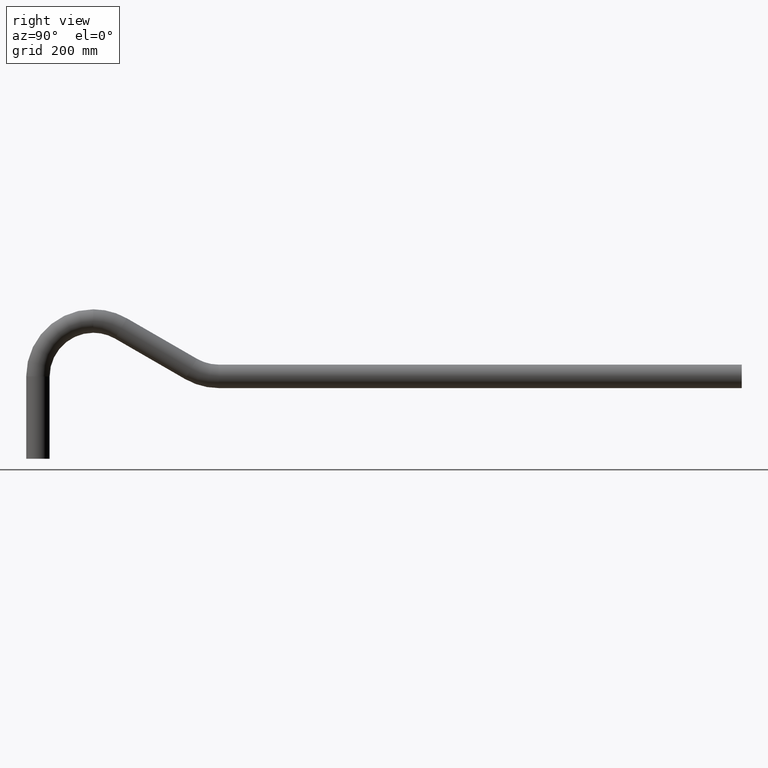
[diagram: clean part render]
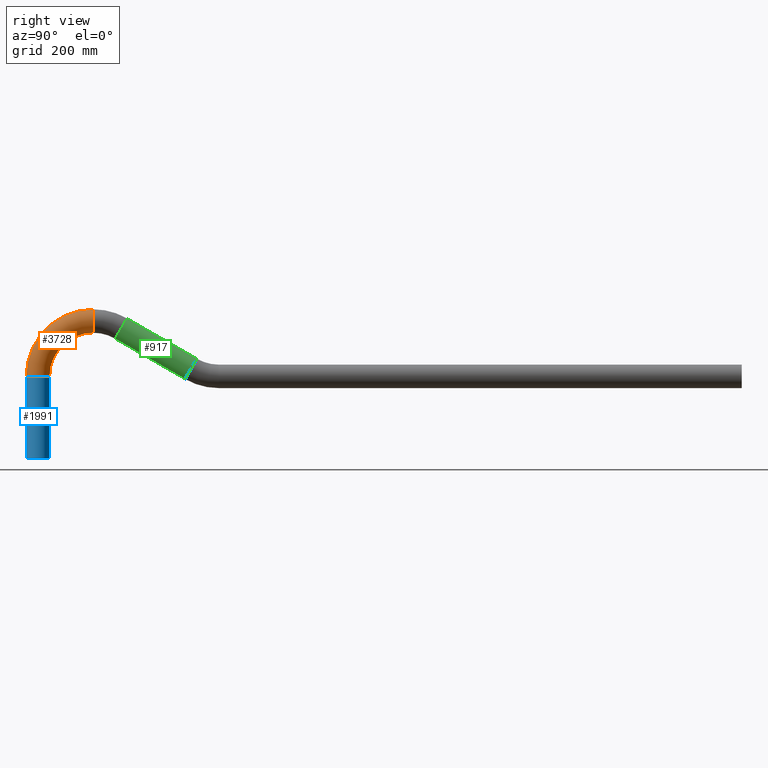
[diagram: same view with three faces highlighted in distinct colors, each labeled with its STEP entity id]
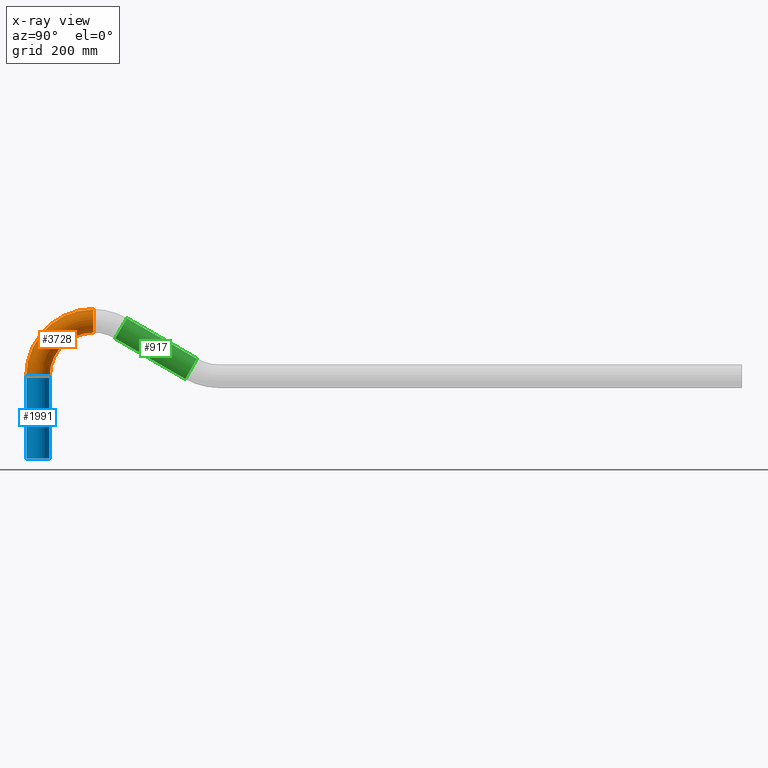
[diagram: x-ray of the same camera — body ghosted, the three highlighted faces saturated]
A machine part, right view with three faces highlighted in distinct colors.
The next image is the same camera in x-ray (body ghosted, the three faces saturated) — at least one of them is partly hidden behind the body in this view.
Their STEP definitions:

[orange] entity #3728 — the highlighted toroidal blend (fillet) surface has major radius 100 mm and minor (blend) radius 21.2 mm.
#468 = CARTESIAN_POINT ( 'NONE',  ( 0.0000000000000000000, 78.79999999999957100, 153.1999999999999900 ) ) ;
#548 = VERTEX_POINT ( 'NONE', #2926 ) ;
#590 = VERTEX_POINT ( 'NONE', #468 ) ;
#754 = AXIS2_PLACEMENT_3D ( 'NONE', #1511, #7659, #4161 ) ;
#1305 = EDGE_CURVE ( 'NONE', #590, #9902, #7749, .T. ) ;
#1511 = CARTESIAN_POINT ( 'NONE',  ( 0.0000000000000000000, -21.20000000000041500, 74.39999999999996300 ) ) ;
#1524 = CIRCLE ( 'NONE', #754, 21.19999999999999900 ) ;
#1598 = ORIENTED_EDGE ( 'NONE', *, *, #3597, .T. ) ;
#1940 = CARTESIAN_POINT ( 'NONE',  ( 2.596251214192388800E-015, -42.40000000000041800, 74.39999999999996300 ) ) ;
#2025 = CARTESIAN_POINT ( 'NONE',  ( 0.0000000000000000000, 78.79999999999957100, 174.4000000000000100 ) ) ;
#2297 = ORIENTED_EDGE ( 'NONE', *, *, #1305, .T. ) ;
#2484 = DIRECTION ( 'NONE',  ( 0.0000000000000000000, 0.0000000000000000000, 1.000000000000000000 ) ) ;
#2926 = CARTESIAN_POINT ( 'NONE',  ( 0.0000000000000000000, -4.163336342344337000E-013, 74.39999999999996300 ) ) ;
#3119 = CARTESIAN_POINT ( 'NONE',  ( 0.0000000000000000000, 78.79999999999957100, 195.5999999999999900 ) ) ;
#3376 = CARTESIAN_POINT ( 'NONE',  ( 2.596251214192388800E-015, 78.79999999999957100, 74.40000000000002000 ) ) ;
#3463 = AXIS2_PLACEMENT_3D ( 'NONE', #2025, #9893, #5497 ) ;
#3473 = DIRECTION ( 'NONE',  ( -1.000000000000000000, -0.0000000000000000000, 0.0000000000000000000 ) ) ;
#3597 = EDGE_CURVE ( 'NONE', #548, #590, #10049, .T. ) ;
#3627 = EDGE_LOOP ( 'NONE', ( #5710, #10106, #1598, #2297 ) ) ;
#3728 = ADVANCED_FACE ( 'NONE', ( #6629 ), #8393, .T. ) ;
#4161 = DIRECTION ( 'NONE',  ( 1.000000000000000000, 0.0000000000000000000, 0.0000000000000000000 ) ) ;
#4745 = AXIS2_PLACEMENT_3D ( 'NONE', #9714, #3473, #5312 ) ;
#5312 = DIRECTION ( 'NONE',  ( 0.0000000000000000000, 0.0000000000000000000, 1.000000000000000000 ) ) ;
#5417 = EDGE_CURVE ( 'NONE', #11172, #548, #1524, .T. ) ;
#5497 = DIRECTION ( 'NONE',  ( 0.0000000000000000000, 0.0000000000000000000, -1.000000000000000000 ) ) ;
#5528 = CARTESIAN_POINT ( 'NONE',  ( 0.0000000000000000000, 78.79999999999957100, 74.40000000000002000 ) ) ;
#5710 = ORIENTED_EDGE ( 'NONE', *, *, #7999, .F. ) ;
#6440 = DIRECTION ( 'NONE',  ( 0.0000000000000000000, 0.0000000000000000000, 1.000000000000000000 ) ) ;
#6629 = FACE_OUTER_BOUND ( 'NONE', #3627, .T. ) ;
#7283 = DIRECTION ( 'NONE',  ( -1.000000000000000000, -0.0000000000000000000, 0.0000000000000000000 ) ) ;
#7659 = DIRECTION ( 'NONE',  ( 0.0000000000000000000, 0.0000000000000000000, 1.000000000000000000 ) ) ;
#7749 = CIRCLE ( 'NONE', #3463, 21.19999999999999600 ) ;
#7999 = EDGE_CURVE ( 'NONE', #11172, #9902, #10416, .T. ) ;
#8393 = TOROIDAL_SURFACE ( 'NONE', #9863, 99.99999999999997200, 21.19999999999999900 ) ;
#8767 = DIRECTION ( 'NONE',  ( -1.000000000000000000, -0.0000000000000000000, 0.0000000000000000000 ) ) ;
#9714 = CARTESIAN_POINT ( 'NONE',  ( 0.0000000000000000000, 78.79999999999957100, 74.40000000000002000 ) ) ;
#9863 = AXIS2_PLACEMENT_3D ( 'NONE', #5528, #7283, #6440 ) ;
#9893 = DIRECTION ( 'NONE',  ( 0.0000000000000000000, -1.000000000000000000, 0.0000000000000000000 ) ) ;
#9902 = VERTEX_POINT ( 'NONE', #3119 ) ;
#10049 = CIRCLE ( 'NONE', #10237, 78.79999999999998300 ) ;
#10106 = ORIENTED_EDGE ( 'NONE', *, *, #5417, .T. ) ;
#10237 = AXIS2_PLACEMENT_3D ( 'NONE', #3376, #8767, #2484 ) ;
#10416 = CIRCLE ( 'NONE', #4745, 121.1999999999999700 ) ;
#11172 = VERTEX_POINT ( 'NONE', #1940 ) ;

[blue] entity #1991 — the highlighted cylindrical surface (edge-blend (fillet) strip) has radius 21.2 mm, axis along (-0, -0, -1).
#74 = DIRECTION ( 'NONE',  ( 0.0000000000000000000, 1.000000000000000000, 0.0000000000000000000 ) ) ;
#324 = FACE_OUTER_BOUND ( 'NONE', #6673, .T. ) ;
#548 = VERTEX_POINT ( 'NONE', #2926 ) ;
#754 = AXIS2_PLACEMENT_3D ( 'NONE', #1511, #7659, #4161 ) ;
#1135 = ORIENTED_EDGE ( 'NONE', *, *, #10469, .T. ) ;
#1511 = CARTESIAN_POINT ( 'NONE',  ( 0.0000000000000000000, -21.20000000000041500, 74.39999999999996300 ) ) ;
#1524 = CIRCLE ( 'NONE', #754, 21.19999999999999900 ) ;
#1919 = VERTEX_POINT ( 'NONE', #4157 ) ;
#1940 = CARTESIAN_POINT ( 'NONE',  ( 2.596251214192388800E-015, -42.40000000000041800, 74.39999999999996300 ) ) ;
#1961 = CYLINDRICAL_SURFACE ( 'NONE', #5839, 21.19999999999999900 ) ;
#1991 = ADVANCED_FACE ( 'NONE', ( #324 ), #1961, .T. ) ;
#2683 = DIRECTION ( 'NONE',  ( 0.0000000000000000000, 0.0000000000000000000, 1.000000000000000000 ) ) ;
#2859 = CARTESIAN_POINT ( 'NONE',  ( 0.0000000000000000000, -4.163336342344337000E-013, 74.39999999999996300 ) ) ;
#2926 = CARTESIAN_POINT ( 'NONE',  ( 0.0000000000000000000, -4.163336342344337000E-013, 74.39999999999996300 ) ) ;
#2983 = ORIENTED_EDGE ( 'NONE', *, *, #5234, .F. ) ;
#3224 = EDGE_CURVE ( 'NONE', #1919, #7178, #8406, .T. ) ;
#3490 = CARTESIAN_POINT ( 'NONE',  ( 2.596251214192388800E-015, -42.40000000000041800, 74.39999999999996300 ) ) ;
#4157 = CARTESIAN_POINT ( 'NONE',  ( 2.596251214192389200E-015, -42.40000000000042500, -74.40000000000002000 ) ) ;
#4161 = DIRECTION ( 'NONE',  ( 1.000000000000000000, 0.0000000000000000000, 0.0000000000000000000 ) ) ;
#4506 = DIRECTION ( 'NONE',  ( -0.0000000000000000000, -6.994852725712932700E-017, -1.000000000000000000 ) ) ;
#5234 = EDGE_CURVE ( 'NONE', #548, #7178, #5535, .T. ) ;
#5252 = LINE ( 'NONE', #3490, #5536 ) ;
#5417 = EDGE_CURVE ( 'NONE', #11172, #548, #1524, .T. ) ;
#5535 = LINE ( 'NONE', #2859, #6490 ) ;
#5536 = VECTOR ( 'NONE', #8770, 1000.000000000000000 ) ;
#5839 = AXIS2_PLACEMENT_3D ( 'NONE', #9753, #4506, #74 ) ;
#6490 = VECTOR ( 'NONE', #7274, 1000.000000000000000 ) ;
#6673 = EDGE_LOOP ( 'NONE', ( #6955, #1135, #11297, #2983 ) ) ;
#6955 = ORIENTED_EDGE ( 'NONE', *, *, #5417, .F. ) ;
#7178 = VERTEX_POINT ( 'NONE', #11290 ) ;
#7274 = DIRECTION ( 'NONE',  ( -0.0000000000000000000, -6.994852725712932700E-017, -1.000000000000000000 ) ) ;
#7659 = DIRECTION ( 'NONE',  ( 0.0000000000000000000, 0.0000000000000000000, 1.000000000000000000 ) ) ;
#8406 = CIRCLE ( 'NONE', #8467, 21.19999999999999900 ) ;
#8467 = AXIS2_PLACEMENT_3D ( 'NONE', #9629, #2683, #9742 ) ;
#8770 = DIRECTION ( 'NONE',  ( -0.0000000000000000000, -6.994852725712932700E-017, -1.000000000000000000 ) ) ;
#9629 = CARTESIAN_POINT ( 'NONE',  ( 0.0000000000000000000, -21.20000000000042600, -74.40000000000002000 ) ) ;
#9742 = DIRECTION ( 'NONE',  ( 1.000000000000000000, 0.0000000000000000000, 0.0000000000000000000 ) ) ;
#9753 = CARTESIAN_POINT ( 'NONE',  ( 0.0000000000000000000, -21.20000000000041500, 74.39999999999996300 ) ) ;
#10469 = EDGE_CURVE ( 'NONE', #11172, #1919, #5252, .T. ) ;
#11172 = VERTEX_POINT ( 'NONE', #1940 ) ;
#11290 = CARTESIAN_POINT ( 'NONE',  ( 0.0000000000000000000, -4.267419750902945500E-013, -74.40000000000002000 ) ) ;
#11297 = ORIENTED_EDGE ( 'NONE', *, *, #3224, .T. ) ;

[green] entity #917 — the highlighted cylindrical surface (edge-blend (fillet) strip) has radius 21.2 mm, axis along (0, 0.866, -0.5).
#201 = FACE_OUTER_BOUND ( 'NONE', #3508, .T. ) ;
#372 = DIRECTION ( 'NONE',  ( 0.0000000000000000000, 0.8660254037844366000, -0.5000000000000036600 ) ) ;
#917 = ADVANCED_FACE ( 'NONE', ( #201 ), #4891, .T. ) ;
#974 = CARTESIAN_POINT ( 'NONE',  ( 0.0000000000000000000, 139.3999999999999500, 179.3622789386737400 ) ) ;
#995 = VERTEX_POINT ( 'NONE', #3951 ) ;
#1292 = CARTESIAN_POINT ( 'NONE',  ( 0.0000000000000000000, 128.7999999999998700, 161.0025403784436800 ) ) ;
#1528 = EDGE_CURVE ( 'NONE', #5742, #995, #10219, .T. ) ;
#1576 = CARTESIAN_POINT ( 'NONE',  ( 0.0000000000000000000, 255.5949192431103000, 87.79745962155632800 ) ) ;
#1925 = EDGE_CURVE ( 'NONE', #995, #4498, #3620, .T. ) ;
#2900 = ORIENTED_EDGE ( 'NONE', *, *, #10962, .T. ) ;
#3382 = CARTESIAN_POINT ( 'NONE',  ( 0.0000000000000000000, 128.7999999999998700, 161.0025403784436800 ) ) ;
#3508 = EDGE_LOOP ( 'NONE', ( #2900, #6174, #9449, #7637 ) ) ;
#3620 = CIRCLE ( 'NONE', #5454, 21.19999999999999600 ) ;
#3637 = DIRECTION ( 'NONE',  ( 0.0000000000000000000, 0.8660254037844366000, -0.5000000000000036600 ) ) ;
#3951 = CARTESIAN_POINT ( 'NONE',  ( 0.0000000000000000000, 266.1949192431103500, 106.1571981817863700 ) ) ;
#4498 = VERTEX_POINT ( 'NONE', #11339 ) ;
#4871 = CARTESIAN_POINT ( 'NONE',  ( 2.596251214192388400E-015, 118.1999999999997800, 142.6428018182136600 ) ) ;
#4891 = CYLINDRICAL_SURFACE ( 'NONE', #7598, 21.19999999999999200 ) ;
#5454 = AXIS2_PLACEMENT_3D ( 'NONE', #1576, #7723, #7030 ) ;
#5598 = DIRECTION ( 'NONE',  ( 0.0000000000000000000, 0.8660254037844366000, -0.5000000000000036600 ) ) ;
#5742 = VERTEX_POINT ( 'NONE', #10795 ) ;
#6044 = DIRECTION ( 'NONE',  ( 1.000000000000000000, 0.0000000000000000000, 0.0000000000000000000 ) ) ;
#6174 = ORIENTED_EDGE ( 'NONE', *, *, #10813, .T. ) ;
#6532 = DIRECTION ( 'NONE',  ( 0.0000000000000000000, 0.5000000000000040000, 0.8660254037844362700 ) ) ;
#7020 = VECTOR ( 'NONE', #5598, 1000.000000000000000 ) ;
#7030 = DIRECTION ( 'NONE',  ( 1.000000000000000000, 0.0000000000000000000, 0.0000000000000000000 ) ) ;
#7300 = LINE ( 'NONE', #4871, #7020 ) ;
#7598 = AXIS2_PLACEMENT_3D ( 'NONE', #1292, #372, #6532 ) ;
#7637 = ORIENTED_EDGE ( 'NONE', *, *, #1528, .F. ) ;
#7716 = CIRCLE ( 'NONE', #9095, 21.19999999999999600 ) ;
#7723 = DIRECTION ( 'NONE',  ( 0.0000000000000000000, 0.8660254037844367100, -0.5000000000000037700 ) ) ;
#8518 = CARTESIAN_POINT ( 'NONE',  ( 2.596251214192388400E-015, 118.1999999999997800, 142.6428018182136600 ) ) ;
#8901 = VERTEX_POINT ( 'NONE', #8518 ) ;
#9095 = AXIS2_PLACEMENT_3D ( 'NONE', #3382, #11237, #6044 ) ;
#9449 = ORIENTED_EDGE ( 'NONE', *, *, #1925, .F. ) ;
#10219 = LINE ( 'NONE', #974, #10610 ) ;
#10610 = VECTOR ( 'NONE', #3637, 1000.000000000000000 ) ;
#10795 = CARTESIAN_POINT ( 'NONE',  ( 0.0000000000000000000, 139.3999999999999500, 179.3622789386737400 ) ) ;
#10813 = EDGE_CURVE ( 'NONE', #8901, #4498, #7300, .T. ) ;
#10962 = EDGE_CURVE ( 'NONE', #5742, #8901, #7716, .T. ) ;
#11237 = DIRECTION ( 'NONE',  ( 0.0000000000000000000, 0.8660254037844367100, -0.5000000000000037700 ) ) ;
#11339 = CARTESIAN_POINT ( 'NONE',  ( 2.596251214192388400E-015, 244.9949192431102200, 69.43772106132628600 ) ) ;